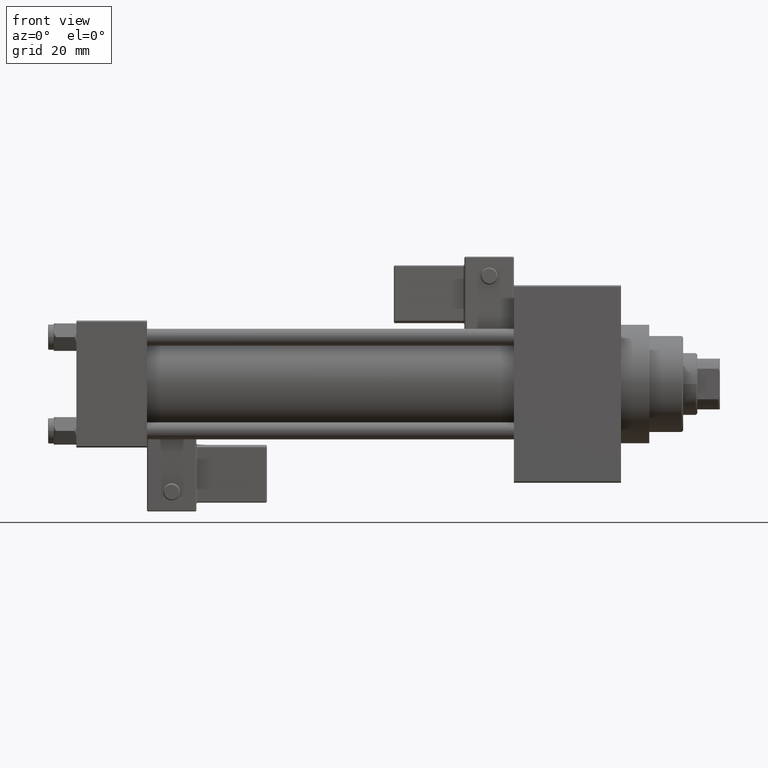
[diagram: clean part render]
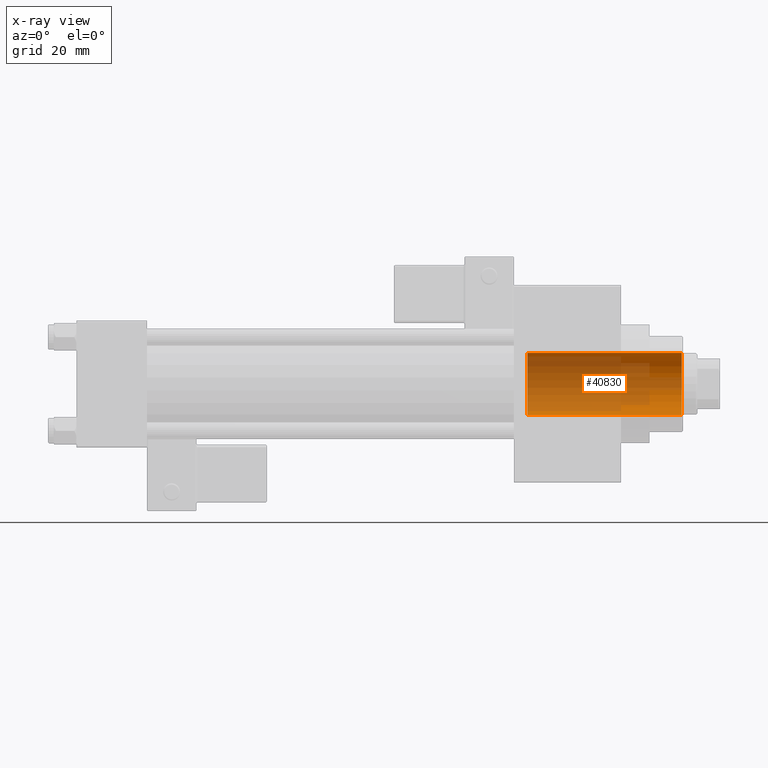
[diagram: x-ray — body ghosted, one internal face saturated and labeled with its STEP entity id]
A machine part, front view, then the same camera in x-ray: the body is ghosted and one INTERNAL B-rep face — a face not visible from any outside direction — is saturated and labeled: STEP entity #40830.
In plain terms, the highlighted cylindrical surface (edge-blend (fillet) strip) has radius 11 mm, axis along (1, -0, -0).
Its self-contained STEP definition (entity closure, byte-faithful):
#274 = LINE ( 'NONE', #14522, #8225 ) ;
#397 = DIRECTION ( 'NONE',  ( 1.000000000000000000, 0.000000000000000000, 0.000000000000000000 ) ) ;
#1529 = ORIENTED_EDGE ( 'NONE', *, *, #32943, .T. ) ;
#2321 = CIRCLE ( 'NONE', #30246, 11.00000000000000000 ) ;
#2659 = CARTESIAN_POINT ( 'NONE',  ( 0.000000000000000000, 0.000000000000000000, -31.11269837220809364 ) ) ;
#3642 = CARTESIAN_POINT ( 'NONE',  ( -11.00000000000000000, 1.347111479062088405E-15, 0.000000000000000000 ) ) ;
#7644 = VERTEX_POINT ( 'NONE', #34085 ) ;
#8055 = DIRECTION ( 'NONE',  ( -0.000000000000000000, -0.000000000000000000, -1.000000000000000000 ) ) ;
#8225 = VECTOR ( 'NONE', #33518, 1000.000000000000000 ) ;
#8927 = EDGE_LOOP ( 'NONE', ( #1529, #23398, #36109, #47783 ) ) ;
#9488 = AXIS2_PLACEMENT_3D ( 'NONE', #2659, #17898, #397 ) ;
#14522 = CARTESIAN_POINT ( 'NONE',  ( 11.00000000000000000, 0.000000000000000000, -31.11269837220809364 ) ) ;
#15101 = EDGE_CURVE ( 'NONE', #40071, #35306, #274, .T. ) ;
#17898 = DIRECTION ( 'NONE',  ( -0.000000000000000000, -0.000000000000000000, 1.000000000000000000 ) ) ;
#18947 = DIRECTION ( 'NONE',  ( -0.000000000000000000, -0.000000000000000000, -1.000000000000000000 ) ) ;
#19923 = DIRECTION ( 'NONE',  ( 1.000000000000000000, 0.000000000000000000, 0.000000000000000000 ) ) ;
#21642 = FACE_OUTER_BOUND ( 'NONE', #8927, .T. ) ;
#23398 = ORIENTED_EDGE ( 'NONE', *, *, #30110, .T. ) ;
#27855 = CARTESIAN_POINT ( 'NONE',  ( 11.00000000000000000, 0.000000000000000000, 0.000000000000000000 ) ) ;
#30110 = EDGE_CURVE ( 'NONE', #30866, #7644, #32854, .T. ) ;
#30246 = AXIS2_PLACEMENT_3D ( 'NONE', #34429, #18947, #19923 ) ;
#30866 = VERTEX_POINT ( 'NONE', #3642 ) ;
#32854 = LINE ( 'NONE', #48085, #34970 ) ;
#32943 = EDGE_CURVE ( 'NONE', #40071, #30866, #2321, .T. ) ;
#33093 = DIRECTION ( 'NONE',  ( -0.000000000000000000, -0.000000000000000000, 1.000000000000000000 ) ) ;
#33518 = DIRECTION ( 'NONE',  ( -0.000000000000000000, -0.000000000000000000, 1.000000000000000000 ) ) ;
#34085 = CARTESIAN_POINT ( 'NONE',  ( -11.00000000000000000, 1.347111479062088405E-15, 54.76000000000000512 ) ) ;
#34429 = CARTESIAN_POINT ( 'NONE',  ( 0.000000000000000000, 0.000000000000000000, 0.000000000000000000 ) ) ;
#34534 = CARTESIAN_POINT ( 'NONE',  ( 11.00000000000000000, 0.000000000000000000, 54.76000000000000512 ) ) ;
#34970 = VECTOR ( 'NONE', #33093, 1000.000000000000000 ) ;
#35306 = VERTEX_POINT ( 'NONE', #34534 ) ;
#36008 = CIRCLE ( 'NONE', #44795, 11.00000000000000000 ) ;
#36109 = ORIENTED_EDGE ( 'NONE', *, *, #46476, .F. ) ;
#36890 = CYLINDRICAL_SURFACE ( 'NONE', #9488, 11.00000000000000000 ) ;
#38060 = DIRECTION ( 'NONE',  ( 1.000000000000000000, 0.000000000000000000, 0.000000000000000000 ) ) ;
#40071 = VERTEX_POINT ( 'NONE', #27855 ) ;
#40830 = ADVANCED_FACE ( 'NONE', ( #21642 ), #36890, .F. ) ;
#44795 = AXIS2_PLACEMENT_3D ( 'NONE', #49290, #8055, #38060 ) ;
#46476 = EDGE_CURVE ( 'NONE', #35306, #7644, #36008, .T. ) ;
#47783 = ORIENTED_EDGE ( 'NONE', *, *, #15101, .F. ) ;
#48085 = CARTESIAN_POINT ( 'NONE',  ( -11.00000000000000000, 1.347111479062088405E-15, -31.11269837220809364 ) ) ;
#49290 = CARTESIAN_POINT ( 'NONE',  ( 0.000000000000000000, 0.000000000000000000, 54.76000000000000512 ) ) ;